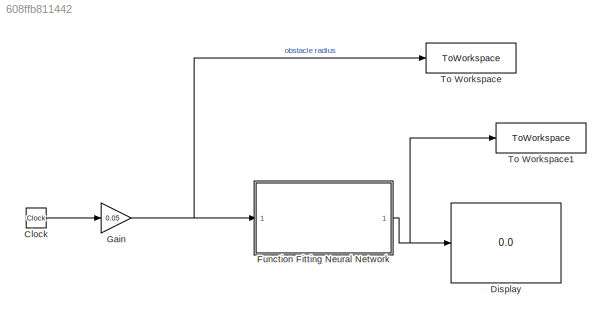
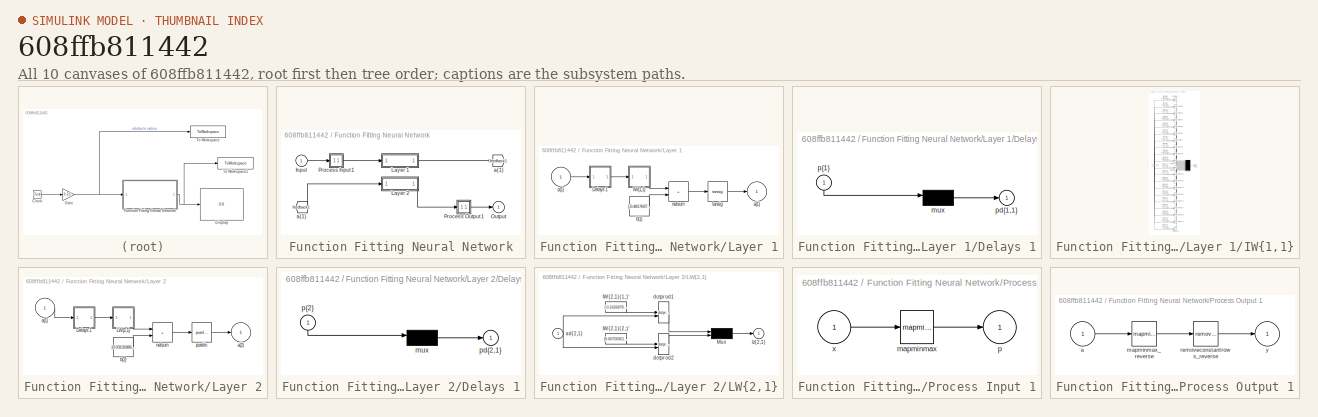
[diagram: thumbnail index - all 10 canvases of the model, root first then tree order]
MODEL slx_608ffb811442
KIND model
CONFIG AbsTol = auto
CONFIG EnableMultiTasking = off
CONFIG FixedStep = 1
CONFIG MaxStep = auto
CONFIG MinStep = auto
CONFIG RelTol = 1e-3
CONFIG SampleTimeConstraint = Unconstrained
CONFIG SolverName = FixedStepDiscrete
CONFIG StartTime = 0.0
CONFIG StopTime = 10.0
BLOCK [Clock] Clock
BLOCK [Display] Display
  Decimation = 1
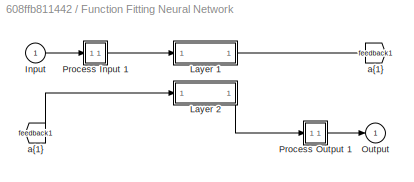
BLOCK [SubSystem] Function Fitting Neural Network
BLOCK [From] Function Fitting Neural Network/ a{1} 
  GotoTag = feedback1
BLOCK [Inport] Function Fitting Neural Network/Input
  PortDimensions = 1
BLOCK [SubSystem] Function Fitting Neural Network/Layer 1
BLOCK [SubSystem] Function Fitting Neural Network/Layer 1/Delays 1
BLOCK [Mux] Function Fitting Neural Network/Layer 1/Delays 1/mux
  Inputs = 1
BLOCK [Outport] Function Fitting Neural Network/Layer 1/Delays 1/pd{1,1}
BLOCK [Inport] Function Fitting Neural Network/Layer 1/Delays 1/p{1}
  NameLocation = left
  PortDimensions = 1
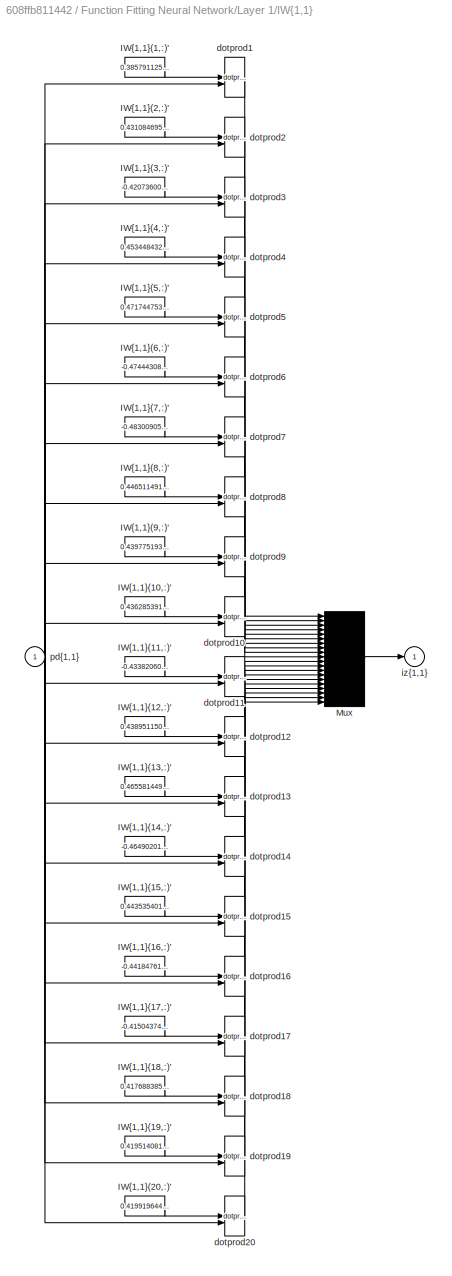
BLOCK [SubSystem] Function Fitting Neural Network/Layer 1/IW{1,1}
BLOCK [Constant] Function Fitting Neural Network/Layer 1/IW{1,1}/IW{1,1}(1,:)'
  Value = 0.385791125708176363406920472698402591049671173095703125
BLOCK [Constant] Function Fitting Neural Network/Layer 1/IW{1,1}/IW{1,1}(10,:)'
  Value = 0.43628539150201117724492405614000745117664337158203125
BLOCK [Constant] Function Fitting Neural Network/Layer 1/IW{1,1}/IW{1,1}(11,:)'
  Value = -0.433820602471342964268075093059451319277286529541015625
BLOCK [Constant] Function Fitting Neural Network/Layer 1/IW{1,1}/IW{1,1}(12,:)'
  Value = 0.438951150918765187203263167248223908245563507080078125
BLOCK [Constant] Function Fitting Neural Network/Layer 1/IW{1,1}/IW{1,1}(13,:)'
  Value = 0.465581449051758411439294604861061088740825653076171875
BLOCK [Constant] Function Fitting Neural Network/Layer 1/IW{1,1}/IW{1,1}(14,:)'
  Value = -0.464902018604204159135662166590918786823749542236328125
BLOCK [Constant] Function Fitting Neural Network/Layer 1/IW{1,1}/IW{1,1}(15,:)'
  Value = 0.44353540128859325619714581989683210849761962890625
BLOCK [Constant] Function Fitting Neural Network/Layer 1/IW{1,1}/IW{1,1}(16,:)'
  Value = -0.441847618958016330470428556509432382881641387939453125
BLOCK [Constant] Function Fitting Neural Network/Layer 1/IW{1,1}/IW{1,1}(17,:)'
  Value = -0.41504374359596785115655848130700178444385528564453125
BLOCK [Constant] Function Fitting Neural Network/Layer 1/IW{1,1}/IW{1,1}(18,:)'
  Value = 0.417688385219415814209042991933529265224933624267578125
BLOCK [Constant] Function Fitting Neural Network/Layer 1/IW{1,1}/IW{1,1}(19,:)'
  Value = 0.41951408111363386321812640744610689580440521240234375
BLOCK [Constant] Function Fitting Neural Network/Layer 1/IW{1,1}/IW{1,1}(2,:)'
  Value = 0.431084695364223613456289285750244744122028350830078125
BLOCK [Constant] Function Fitting Neural Network/Layer 1/IW{1,1}/IW{1,1}(20,:)'
  Value = 0.41991964439801332531487787491641938686370849609375
BLOCK [Constant] Function Fitting Neural Network/Layer 1/IW{1,1}/IW{1,1}(3,:)'
  Value = -0.4207360027662521151370356164989061653614044189453125
BLOCK [Constant] Function Fitting Neural Network/Layer 1/IW{1,1}/IW{1,1}(4,:)'
  Value = 0.4534484321497032066616839074413292109966278076171875
BLOCK [Constant] Function Fitting Neural Network/Layer 1/IW{1,1}/IW{1,1}(5,:)'
  Value = 0.471744753381412695869556728212046436965465545654296875
BLOCK [Constant] Function Fitting Neural Network/Layer 1/IW{1,1}/IW{1,1}(6,:)'
  Value = -0.474443087961794407458882005812483839690685272216796875
BLOCK [Constant] Function Fitting Neural Network/Layer 1/IW{1,1}/IW{1,1}(7,:)'
  Value = -0.483009057197872238020863733254373073577880859375
BLOCK [Constant] Function Fitting Neural Network/Layer 1/IW{1,1}/IW{1,1}(8,:)'
  Value = 0.446511491183943232119446520300698466598987579345703125
BLOCK [Constant] Function Fitting Neural Network/Layer 1/IW{1,1}/IW{1,1}(9,:)'
  Value = 0.4397751936978948616996376586030237376689910888671875
BLOCK [Mux] Function Fitting Neural Network/Layer 1/IW{1,1}/Mux
  Inputs = 20
BLOCK [Reference] Function Fitting Neural Network/Layer 1/IW{1,1}/dotprod1  REF=neural/Weight Functions/dotprod
  SourceBlock = neural/Weight Functions/dotprod
  SourceType = DOTPROD
BLOCK [Reference] Function Fitting Neural Network/Layer 1/IW{1,1}/dotprod10  REF=neural/Weight Functions/dotprod
  SourceBlock = neural/Weight Functions/dotprod
  SourceType = DOTPROD
BLOCK [Reference] Function Fitting Neural Network/Layer 1/IW{1,1}/dotprod11  REF=neural/Weight Functions/dotprod
  SourceBlock = neural/Weight Functions/dotprod
  SourceType = DOTPROD
BLOCK [Reference] Function Fitting Neural Network/Layer 1/IW{1,1}/dotprod12  REF=neural/Weight Functions/dotprod
  SourceBlock = neural/Weight Functions/dotprod
  SourceType = DOTPROD
BLOCK [Reference] Function Fitting Neural Network/Layer 1/IW{1,1}/dotprod13  REF=neural/Weight Functions/dotprod
  SourceBlock = neural/Weight Functions/dotprod
  SourceType = DOTPROD
BLOCK [Reference] Function Fitting Neural Network/Layer 1/IW{1,1}/dotprod14  REF=neural/Weight Functions/dotprod
  SourceBlock = neural/Weight Functions/dotprod
  SourceType = DOTPROD
BLOCK [Reference] Function Fitting Neural Network/Layer 1/IW{1,1}/dotprod15  REF=neural/Weight Functions/dotprod
  SourceBlock = neural/Weight Functions/dotprod
  SourceType = DOTPROD
BLOCK [Reference] Function Fitting Neural Network/Layer 1/IW{1,1}/dotprod16  REF=neural/Weight Functions/dotprod
  SourceBlock = neural/Weight Functions/dotprod
  SourceType = DOTPROD
BLOCK [Reference] Function Fitting Neural Network/Layer 1/IW{1,1}/dotprod17  REF=neural/Weight Functions/dotprod
  SourceBlock = neural/Weight Functions/dotprod
  SourceType = DOTPROD
BLOCK [Reference] Function Fitting Neural Network/Layer 1/IW{1,1}/dotprod18  REF=neural/Weight Functions/dotprod
  SourceBlock = neural/Weight Functions/dotprod
  SourceType = DOTPROD
BLOCK [Reference] Function Fitting Neural Network/Layer 1/IW{1,1}/dotprod19  REF=neural/Weight Functions/dotprod
  SourceBlock = neural/Weight Functions/dotprod
  SourceType = DOTPROD
BLOCK [Reference] Function Fitting Neural Network/Layer 1/IW{1,1}/dotprod2  REF=neural/Weight Functions/dotprod
  SourceBlock = neural/Weight Functions/dotprod
  SourceType = DOTPROD
BLOCK [Reference] Function Fitting Neural Network/Layer 1/IW{1,1}/dotprod20  REF=neural/Weight Functions/dotprod
  SourceBlock = neural/Weight Functions/dotprod
  SourceType = DOTPROD
BLOCK [Reference] Function Fitting Neural Network/Layer 1/IW{1,1}/dotprod3  REF=neural/Weight Functions/dotprod
  SourceBlock = neural/Weight Functions/dotprod
  SourceType = DOTPROD
BLOCK [Reference] Function Fitting Neural Network/Layer 1/IW{1,1}/dotprod4  REF=neural/Weight Functions/dotprod
  SourceBlock = neural/Weight Functions/dotprod
  SourceType = DOTPROD
BLOCK [Reference] Function Fitting Neural Network/Layer 1/IW{1,1}/dotprod5  REF=neural/Weight Functions/dotprod
  SourceBlock = neural/Weight Functions/dotprod
  SourceType = DOTPROD
BLOCK [Reference] Function Fitting Neural Network/Layer 1/IW{1,1}/dotprod6  REF=neural/Weight Functions/dotprod
  SourceBlock = neural/Weight Functions/dotprod
  SourceType = DOTPROD
BLOCK [Reference] Function Fitting Neural Network/Layer 1/IW{1,1}/dotprod7  REF=neural/Weight Functions/dotprod
  SourceBlock = neural/Weight Functions/dotprod
  SourceType = DOTPROD
BLOCK [Reference] Function Fitting Neural Network/Layer 1/IW{1,1}/dotprod8  REF=neural/Weight Functions/dotprod
  SourceBlock = neural/Weight Functions/dotprod
  SourceType = DOTPROD
BLOCK [Reference] Function Fitting Neural Network/Layer 1/IW{1,1}/dotprod9  REF=neural/Weight Functions/dotprod
  SourceBlock = neural/Weight Functions/dotprod
  SourceType = DOTPROD
BLOCK [Outport] Function Fitting Neural Network/Layer 1/IW{1,1}/iz{1,1}
BLOCK [Inport] Function Fitting Neural Network/Layer 1/IW{1,1}/pd{1,1}
  PortDimensions = 1
BLOCK [Outport] Function Fitting Neural Network/Layer 1/a{1}
  InitialOutput = [0;0;0;0;0;0;0;0;0;0;0;0;0;0;0;0;0;0;0;0]
BLOCK [Constant] Function Fitting Neural Network/Layer 1/b{1}
  Value = [-0.4817697371321660870790992703405208885669708251953125;-0.404346948350879475952979191788472235202789306640625;0.374556355738183188730516803843784146010875701904296875;-0.303418659356770648027890047160326503217220306396484375;-0.24500020941144295960611998452804982662200927734375;0.2146363159208510840159078725264407694339752197265625;0.1744985749533798091714942302132840268313884735107421875;-0.120...<+733ch>
BLOCK [Sum] Function Fitting Neural Network/Layer 1/netsum
  IconShape = rectangular
  InputSameDT = on
  Inputs = 2
  OutDataTypeStr = Inherit: Same as first input
  SaturateOnIntegerOverflow = on
BLOCK [Inport] Function Fitting Neural Network/Layer 1/p{1}
  PortDimensions = 1
BLOCK [Reference] Function Fitting Neural Network/Layer 1/tansig  REF=neural/Transfer Functions/tansig
  SourceBlock = neural/Transfer Functions/tansig
  SourceType = TANSIG
BLOCK [SubSystem] Function Fitting Neural Network/Layer 2
BLOCK [SubSystem] Function Fitting Neural Network/Layer 2/Delays 1
BLOCK [Mux] Function Fitting Neural Network/Layer 2/Delays 1/mux
  Inputs = 1
BLOCK [Outport] Function Fitting Neural Network/Layer 2/Delays 1/pd{2,1}
BLOCK [Inport] Function Fitting Neural Network/Layer 2/Delays 1/p{2}
  NameLocation = left
  PortDimensions = 20
BLOCK [SubSystem] Function Fitting Neural Network/Layer 2/LW{2,1}
BLOCK [Constant] Function Fitting Neural Network/Layer 2/LW{2,1}/IW{2,1}(1,:)'
  Value = [-0.1626878657231537184113534522111876867711544036865234375;-0.1200341041433554689632501322194002568721771240234375;0.1005644547301407787376348323959973640739917755126953125;-0.0218554638658896051295332796371440053917467594146728515625;0.046984730038880005709156506554791121743619441986083984375;-0.06521551214731112489086939376647933386266231536865234375;-0.09351088155010280067447325791363255120813...<+806ch>
BLOCK [Constant] Function Fitting Neural Network/Layer 2/LW{2,1}/IW{2,1}(2,:)'
  Value = [0.00756061639430020450414193788901684456504881381988525390625;0.08750502387805585147173559334987658075988292694091796875;-0.07664562041841531392361019925374421291053295135498046875;0.098644587802629579709190466019208543002605438232421875;0.0880836660792229941829845074607874266803264617919921875;-0.103339761351128045507863362217904068529605865478515625;-0.088809493719710627668284530500386608764529...<+787ch>
BLOCK [Mux] Function Fitting Neural Network/Layer 2/LW{2,1}/Mux
  Inputs = 2
BLOCK [Inport] Function Fitting Neural Network/Layer 2/LW{2,1}/ad{2,1}
  PortDimensions = 20
BLOCK [Reference] Function Fitting Neural Network/Layer 2/LW{2,1}/dotprod1  REF=neural/Weight Functions/dotprod
  SourceBlock = neural/Weight Functions/dotprod
  SourceType = DOTPROD
BLOCK [Reference] Function Fitting Neural Network/Layer 2/LW{2,1}/dotprod2  REF=neural/Weight Functions/dotprod
  SourceBlock = neural/Weight Functions/dotprod
  SourceType = DOTPROD
BLOCK [Outport] Function Fitting Neural Network/Layer 2/LW{2,1}/lz{2,1}
BLOCK [Inport] Function Fitting Neural Network/Layer 2/a{1} 
  PortDimensions = 20
BLOCK [Outport] Function Fitting Neural Network/Layer 2/a{2}
  InitialOutput = [0;0]
BLOCK [Constant] Function Fitting Neural Network/Layer 2/b{2}
  Value = [0.0313188629546082564214515286948881112039089202880859375;0.1792620669296504931633506885191309265792369842529296875]
BLOCK [Sum] Function Fitting Neural Network/Layer 2/netsum
  IconShape = rectangular
  InputSameDT = on
  Inputs = 2
  OutDataTypeStr = Inherit: Same as first input
  SaturateOnIntegerOverflow = on
BLOCK [Reference] Function Fitting Neural Network/Layer 2/purelin  REF=neural/Transfer Functions/purelin
  SourceBlock = neural/Transfer Functions/purelin
  SourceType = PURELIN
BLOCK [Outport] Function Fitting Neural Network/Output
  InitialOutput = [0;0;0]
BLOCK [SubSystem] Function Fitting Neural Network/Process Input 1
BLOCK [Reference] Function Fitting Neural Network/Process Input 1/mapminmax  REF=neural/Processing Functions/mapminmax
  SourceBlock = neural/Processing Functions/mapminmax
  SourceType = MAPMINMAX Preprocess
BLOCK [Outport] Function Fitting Neural Network/Process Input 1/p
  PortDimensions = 1
BLOCK [Inport] Function Fitting Neural Network/Process Input 1/x
  PortDimensions = 1
BLOCK [SubSystem] Function Fitting Neural Network/Process Output 1
BLOCK [Inport] Function Fitting Neural Network/Process Output 1/a
  PortDimensions = 2
BLOCK [Reference] Function Fitting Neural Network/Process Output 1/mapminmax_reverse  REF=neural/Processing Functions/mapminmax_reverse
  SourceBlock = neural/Processing Functions/mapminmax_reverse
  SourceType = MAPMINMAX Reverse Process
BLOCK [Reference] Function Fitting Neural Network/Process Output 1/removeconstantrows_reverse  REF=neural/Processing Functions/removeconstantrows_reverse
  SourceBlock = neural/Processing Functions/removeconstantrows_reverse
  SourceType = REMOVECONSTANTROWS Reverse Process
BLOCK [Outport] Function Fitting Neural Network/Process Output 1/y
  PortDimensions = 3
BLOCK [Goto] Function Fitting Neural Network/a{1}
  GotoTag = feedback1
BLOCK [Gain] Gain
  Gain = 0.05
BLOCK [ToWorkspace] To Workspace
  FixptAsFi = on
  MaxDataPoints = inf
  SampleTime = -1
  SaveFormat = Timeseries
  VariableName = obs_r
BLOCK [ToWorkspace] To Workspace1
  FixptAsFi = on
  MaxDataPoints = inf
  SampleTime = -1
  SaveFormat = Timeseries
  VariableName = cbf
LINE Clock:1 -> Gain:1
LINE Function Fitting Neural Network/ a{1} :1 -> Function Fitting Neural Network/Layer 2:1
LINE Function Fitting Neural Network/Input:1 -> Function Fitting Neural Network/Process Input 1:1
LINE Function Fitting Neural Network/Layer 1/Delays 1/mux:1 -> Function Fitting Neural Network/Layer 1/Delays 1/pd{1,1}:1
LINE Function Fitting Neural Network/Layer 1/Delays 1/p{1}:1 -> Function Fitting Neural Network/Layer 1/Delays 1/mux:1
LINE Function Fitting Neural Network/Layer 1/Delays 1:1 -> Function Fitting Neural Network/Layer 1/IW{1,1}:1
LINE Function Fitting Neural Network/Layer 1/IW{1,1}/IW{1,1}(1,:)':1 -> Function Fitting Neural Network/Layer 1/IW{1,1}/dotprod1:1
LINE Function Fitting Neural Network/Layer 1/IW{1,1}/IW{1,1}(10,:)':1 -> Function Fitting Neural Network/Layer 1/IW{1,1}/dotprod10:1
LINE Function Fitting Neural Network/Layer 1/IW{1,1}/IW{1,1}(11,:)':1 -> Function Fitting Neural Network/Layer 1/IW{1,1}/dotprod11:1
LINE Function Fitting Neural Network/Layer 1/IW{1,1}/IW{1,1}(12,:)':1 -> Function Fitting Neural Network/Layer 1/IW{1,1}/dotprod12:1
LINE Function Fitting Neural Network/Layer 1/IW{1,1}/IW{1,1}(13,:)':1 -> Function Fitting Neural Network/Layer 1/IW{1,1}/dotprod13:1
LINE Function Fitting Neural Network/Layer 1/IW{1,1}/IW{1,1}(14,:)':1 -> Function Fitting Neural Network/Layer 1/IW{1,1}/dotprod14:1
LINE Function Fitting Neural Network/Layer 1/IW{1,1}/IW{1,1}(15,:)':1 -> Function Fitting Neural Network/Layer 1/IW{1,1}/dotprod15:1
LINE Function Fitting Neural Network/Layer 1/IW{1,1}/IW{1,1}(16,:)':1 -> Function Fitting Neural Network/Layer 1/IW{1,1}/dotprod16:1
LINE Function Fitting Neural Network/Layer 1/IW{1,1}/IW{1,1}(17,:)':1 -> Function Fitting Neural Network/Layer 1/IW{1,1}/dotprod17:1
LINE Function Fitting Neural Network/Layer 1/IW{1,1}/IW{1,1}(18,:)':1 -> Function Fitting Neural Network/Layer 1/IW{1,1}/dotprod18:1
LINE Function Fitting Neural Network/Layer 1/IW{1,1}/IW{1,1}(19,:)':1 -> Function Fitting Neural Network/Layer 1/IW{1,1}/dotprod19:1
LINE Function Fitting Neural Network/Layer 1/IW{1,1}/IW{1,1}(2,:)':1 -> Function Fitting Neural Network/Layer 1/IW{1,1}/dotprod2:1
LINE Function Fitting Neural Network/Layer 1/IW{1,1}/IW{1,1}(20,:)':1 -> Function Fitting Neural Network/Layer 1/IW{1,1}/dotprod20:1
LINE Function Fitting Neural Network/Layer 1/IW{1,1}/IW{1,1}(3,:)':1 -> Function Fitting Neural Network/Layer 1/IW{1,1}/dotprod3:1
LINE Function Fitting Neural Network/Layer 1/IW{1,1}/IW{1,1}(4,:)':1 -> Function Fitting Neural Network/Layer 1/IW{1,1}/dotprod4:1
LINE Function Fitting Neural Network/Layer 1/IW{1,1}/IW{1,1}(5,:)':1 -> Function Fitting Neural Network/Layer 1/IW{1,1}/dotprod5:1
LINE Function Fitting Neural Network/Layer 1/IW{1,1}/IW{1,1}(6,:)':1 -> Function Fitting Neural Network/Layer 1/IW{1,1}/dotprod6:1
LINE Function Fitting Neural Network/Layer 1/IW{1,1}/IW{1,1}(7,:)':1 -> Function Fitting Neural Network/Layer 1/IW{1,1}/dotprod7:1
LINE Function Fitting Neural Network/Layer 1/IW{1,1}/IW{1,1}(8,:)':1 -> Function Fitting Neural Network/Layer 1/IW{1,1}/dotprod8:1
LINE Function Fitting Neural Network/Layer 1/IW{1,1}/IW{1,1}(9,:)':1 -> Function Fitting Neural Network/Layer 1/IW{1,1}/dotprod9:1
LINE Function Fitting Neural Network/Layer 1/IW{1,1}/Mux:1 -> Function Fitting Neural Network/Layer 1/IW{1,1}/iz{1,1}:1
LINE Function Fitting Neural Network/Layer 1/IW{1,1}/dotprod10:1 -> Function Fitting Neural Network/Layer 1/IW{1,1}/Mux:10
LINE Function Fitting Neural Network/Layer 1/IW{1,1}/dotprod11:1 -> Function Fitting Neural Network/Layer 1/IW{1,1}/Mux:11
LINE Function Fitting Neural Network/Layer 1/IW{1,1}/dotprod12:1 -> Function Fitting Neural Network/Layer 1/IW{1,1}/Mux:12
LINE Function Fitting Neural Network/Layer 1/IW{1,1}/dotprod13:1 -> Function Fitting Neural Network/Layer 1/IW{1,1}/Mux:13
LINE Function Fitting Neural Network/Layer 1/IW{1,1}/dotprod14:1 -> Function Fitting Neural Network/Layer 1/IW{1,1}/Mux:14
LINE Function Fitting Neural Network/Layer 1/IW{1,1}/dotprod15:1 -> Function Fitting Neural Network/Layer 1/IW{1,1}/Mux:15
LINE Function Fitting Neural Network/Layer 1/IW{1,1}/dotprod16:1 -> Function Fitting Neural Network/Layer 1/IW{1,1}/Mux:16
LINE Function Fitting Neural Network/Layer 1/IW{1,1}/dotprod17:1 -> Function Fitting Neural Network/Layer 1/IW{1,1}/Mux:17
LINE Function Fitting Neural Network/Layer 1/IW{1,1}/dotprod18:1 -> Function Fitting Neural Network/Layer 1/IW{1,1}/Mux:18
LINE Function Fitting Neural Network/Layer 1/IW{1,1}/dotprod19:1 -> Function Fitting Neural Network/Layer 1/IW{1,1}/Mux:19
LINE Function Fitting Neural Network/Layer 1/IW{1,1}/dotprod1:1 -> Function Fitting Neural Network/Layer 1/IW{1,1}/Mux:1
LINE Function Fitting Neural Network/Layer 1/IW{1,1}/dotprod20:1 -> Function Fitting Neural Network/Layer 1/IW{1,1}/Mux:20
LINE Function Fitting Neural Network/Layer 1/IW{1,1}/dotprod2:1 -> Function Fitting Neural Network/Layer 1/IW{1,1}/Mux:2
LINE Function Fitting Neural Network/Layer 1/IW{1,1}/dotprod3:1 -> Function Fitting Neural Network/Layer 1/IW{1,1}/Mux:3
LINE Function Fitting Neural Network/Layer 1/IW{1,1}/dotprod4:1 -> Function Fitting Neural Network/Layer 1/IW{1,1}/Mux:4
LINE Function Fitting Neural Network/Layer 1/IW{1,1}/dotprod5:1 -> Function Fitting Neural Network/Layer 1/IW{1,1}/Mux:5
LINE Function Fitting Neural Network/Layer 1/IW{1,1}/dotprod6:1 -> Function Fitting Neural Network/Layer 1/IW{1,1}/Mux:6
LINE Function Fitting Neural Network/Layer 1/IW{1,1}/dotprod7:1 -> Function Fitting Neural Network/Layer 1/IW{1,1}/Mux:7
LINE Function Fitting Neural Network/Layer 1/IW{1,1}/dotprod8:1 -> Function Fitting Neural Network/Layer 1/IW{1,1}/Mux:8
LINE Function Fitting Neural Network/Layer 1/IW{1,1}/dotprod9:1 -> Function Fitting Neural Network/Layer 1/IW{1,1}/Mux:9
NET Function Fitting Neural Network/Layer 1/IW{1,1}/pd{1,1}:1 -> Function Fitting Neural Network/Layer 1/IW{1,1}/dotprod10:2, Function Fitting Neural Network/Layer 1/IW{1,1}/dotprod11:2, Function Fitting Neural Network/Layer 1/IW{1,1}/dotprod12:2, Function Fitting Neural Network/Layer 1/IW{1,1}/dotprod13:2, Function Fitting Neural Network/Layer 1/IW{1,1}/dotprod14:2, Function Fitting Neural Network/Layer 1/IW{1,1}/dotprod15:2, Function Fitting Neural Network/Layer 1/IW{1,1}/dotprod16:2, Function Fitting Neural Network/Layer 1/IW{1,1}/dotprod17:2, Function Fitting Neural Network/Layer 1/IW{1,1}/dotprod18:2, Function Fitting Neural Network/Layer 1/IW{1,1}/dotprod19:2, Function Fitting Neural Network/Layer 1/IW{1,1}/dotprod1:2, Function Fitting Neural Network/Layer 1/IW{1,1}/dotprod20:2, Function Fitting Neural Network/Layer 1/IW{1,1}/dotprod2:2, Function Fitting Neural Network/Layer 1/IW{1,1}/dotprod3:2, Function Fitting Neural Network/Layer 1/IW{1,1}/dotprod4:2, Function Fitting Neural Network/Layer 1/IW{1,1}/dotprod5:2, Function Fitting Neural Network/Layer 1/IW{1,1}/dotprod6:2, Function Fitting Neural Network/Layer 1/IW{1,1}/dotprod7:2, Function Fitting Neural Network/Layer 1/IW{1,1}/dotprod8:2, Function Fitting Neural Network/Layer 1/IW{1,1}/dotprod9:2
LINE Function Fitting Neural Network/Layer 1/IW{1,1}:1 -> Function Fitting Neural Network/Layer 1/netsum:1
LINE Function Fitting Neural Network/Layer 1/b{1}:1 -> Function Fitting Neural Network/Layer 1/netsum:2
LINE Function Fitting Neural Network/Layer 1/netsum:1 -> Function Fitting Neural Network/Layer 1/tansig:1
LINE Function Fitting Neural Network/Layer 1/p{1}:1 -> Function Fitting Neural Network/Layer 1/Delays 1:1
LINE Function Fitting Neural Network/Layer 1/tansig:1 -> Function Fitting Neural Network/Layer 1/a{1}:1
LINE Function Fitting Neural Network/Layer 1:1 -> Function Fitting Neural Network/a{1}:1
LINE Function Fitting Neural Network/Layer 2/Delays 1/mux:1 -> Function Fitting Neural Network/Layer 2/Delays 1/pd{2,1}:1
LINE Function Fitting Neural Network/Layer 2/Delays 1/p{2}:1 -> Function Fitting Neural Network/Layer 2/Delays 1/mux:1
LINE Function Fitting Neural Network/Layer 2/Delays 1:1 -> Function Fitting Neural Network/Layer 2/LW{2,1}:1
LINE Function Fitting Neural Network/Layer 2/LW{2,1}/IW{2,1}(1,:)':1 -> Function Fitting Neural Network/Layer 2/LW{2,1}/dotprod1:1
LINE Function Fitting Neural Network/Layer 2/LW{2,1}/IW{2,1}(2,:)':1 -> Function Fitting Neural Network/Layer 2/LW{2,1}/dotprod2:1
LINE Function Fitting Neural Network/Layer 2/LW{2,1}/Mux:1 -> Function Fitting Neural Network/Layer 2/LW{2,1}/lz{2,1}:1
NET Function Fitting Neural Network/Layer 2/LW{2,1}/ad{2,1}:1 -> Function Fitting Neural Network/Layer 2/LW{2,1}/dotprod1:2, Function Fitting Neural Network/Layer 2/LW{2,1}/dotprod2:2
LINE Function Fitting Neural Network/Layer 2/LW{2,1}/dotprod1:1 -> Function Fitting Neural Network/Layer 2/LW{2,1}/Mux:1
LINE Function Fitting Neural Network/Layer 2/LW{2,1}/dotprod2:1 -> Function Fitting Neural Network/Layer 2/LW{2,1}/Mux:2
LINE Function Fitting Neural Network/Layer 2/LW{2,1}:1 -> Function Fitting Neural Network/Layer 2/netsum:1
LINE Function Fitting Neural Network/Layer 2/a{1} :1 -> Function Fitting Neural Network/Layer 2/Delays 1:1
LINE Function Fitting Neural Network/Layer 2/b{2}:1 -> Function Fitting Neural Network/Layer 2/netsum:2
LINE Function Fitting Neural Network/Layer 2/netsum:1 -> Function Fitting Neural Network/Layer 2/purelin:1
LINE Function Fitting Neural Network/Layer 2/purelin:1 -> Function Fitting Neural Network/Layer 2/a{2}:1
LINE Function Fitting Neural Network/Layer 2:1 -> Function Fitting Neural Network/Process Output 1:1
LINE Function Fitting Neural Network/Process Input 1/mapminmax:1 -> Function Fitting Neural Network/Process Input 1/p:1
LINE Function Fitting Neural Network/Process Input 1/x:1 -> Function Fitting Neural Network/Process Input 1/mapminmax:1
LINE Function Fitting Neural Network/Process Input 1:1 -> Function Fitting Neural Network/Layer 1:1
LINE Function Fitting Neural Network/Process Output 1/a:1 -> Function Fitting Neural Network/Process Output 1/mapminmax_reverse:1
LINE Function Fitting Neural Network/Process Output 1/mapminmax_reverse:1 -> Function Fitting Neural Network/Process Output 1/removeconstantrows_reverse:1
LINE Function Fitting Neural Network/Process Output 1/removeconstantrows_reverse:1 -> Function Fitting Neural Network/Process Output 1/y:1
LINE Function Fitting Neural Network/Process Output 1:1 -> Function Fitting Neural Network/Output:1
NET Function Fitting Neural Network:1 -> Display:1, To Workspace1:1
NET Gain:1 -> Function Fitting Neural Network:1, To Workspace:1
note: NET lines group one-source signal fan-out (src -> all destinations, sorted); 1:1 wires keep LINE
